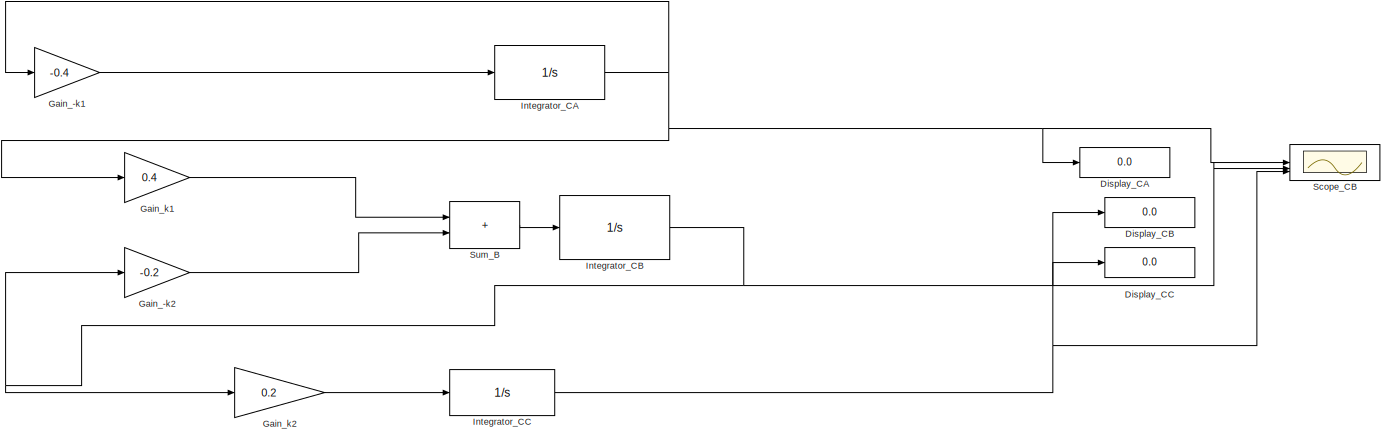
[diagram: root canvas - part 1/2, center side, full height]
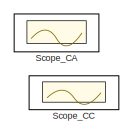
[diagram: root canvas - part 2/2, top right region]
MODEL slx_3aee440d7aa8
KIND model
CONFIG AbsTol = auto
CONFIG EnableMultiTasking = off
CONFIG FixedStep = auto
CONFIG MaxStep = auto
CONFIG MinStep = auto
CONFIG RelTol = 1e-3
CONFIG SampleTimeConstraint = Unconstrained
CONFIG SolverName = FixedStepAuto
CONFIG StartTime = 0.0
CONFIG StopTime = 50
BLOCK [Display] Display_CA
  Decimation = 1
BLOCK [Display] Display_CB
  Decimation = 1
BLOCK [Display] Display_CC
  Decimation = 1
BLOCK [Gain] Gain_-k1
  Gain = -0.4
BLOCK [Gain] Gain_-k2
  Gain = -0.2
BLOCK [Gain] Gain_k1
  Gain = 0.4
BLOCK [Gain] Gain_k2
  Gain = 0.2
BLOCK [Integrator] Integrator_CA
  InitialCondition = 5
  LimitOutput = on
  LowerSaturationLimit = 0
  UpperSaturationLimit = 1
BLOCK [Integrator] Integrator_CB
  LimitOutput = on
  LowerSaturationLimit = 0
  UpperSaturationLimit = 1
BLOCK [Integrator] Integrator_CC
  LimitOutput = on
  LowerSaturationLimit = 0
  UpperSaturationLimit = 1
BLOCK [Scope] Scope_CA
  ActiveDisplayYMaximum = 1.1249999997606503
  ActiveDisplayYMinimum = -0.1249999978458536
  Floating = off
  GraphicalSettings = {"Style":{"BackgroundColor":[0.12941176470588237,0.12941176470588237,0.12941176470588237],"AxesColor":[0,0,0],"LabelsColor":[0.8509803921568627,0.8509803921568627,0.8509803921568627],"PreserveColors":false,"Visible":[true],"LineStyle":["-"],"LineWidth":[2],"BarWidth":[0.9],"LineColor":[[1,0,0]],"LineFaceAlpha":[1],"LineEdgeAlpha":[1],"Marker":["none"],"FontSize":8.5,"LineTrueColor":[[1,0,0]],"Chan...<+1918ch>
  MultipleDisplayCache = [{"MaxYLimMag":1.1249999997606503,"MaxYLimReal":1.1249999997606503,"MinYLimMag":0,"MinYLimReal":-0.1249999978458536,"PlotAsMagnitudePhase":false,"ShowGrid":true,"ShowLegend":true,"Title":"%<SignalLabel>","YLabel":""}]
  NumInputPorts = 1
  ScopeFrameLocation = window
  ShowLegend = on
  ShowTimeAxisLabel = on
  TimeAxisLabels = All
  WasSavedAsWebScope = on
  WindowPosition = [250.000000,313.000000,863.000000,508.000000,]
BLOCK [Scope] Scope_CB
  ActiveDisplayYMaximum = 1.1619994235489424
  ActiveDisplayYMinimum = -0.74861641924614009
  DataLoggingVariableName = ScopeData1
  DisplayFullPath = on
  Floating = off
  GraphicalSettings = {"Style":{"BackgroundColor":[0.12941176470588237,0.12941176470588237,0.12941176470588237],"AxesColor":[0.07058823529411765,0.07058823529411765,0.07058823529411765],"LabelsColor":[0.8509803921568627,0.8509803921568627,0.8509803921568627],"PreserveColors":false,"Visible":[true,true,true],"LineStyle":["-","-","-"],"LineWidth":[3,1.5,1.5],"BarWidth":[0.9,0.9,0.9],"LineColor":[[0,0,1],"auto","auto"],"L...<+2384ch>
  MultipleDisplayCache = [{"MaxYLimMag":0.55983752533333331,"MaxYLimReal":1.1619994235489424,"MinYLimMag":0,"MinYLimReal":-0.74861641924614009,"PlotAsMagnitudePhase":false,"ShowGrid":true,"ShowLegend":true,"Title":"Batch Reactor Simulation: Concentration Profile of A -> B -> C Over Time","YLabel":"Concentration (mol\/L)"}]
  NumInputPorts = 3
  OpenAtSimulationStart = on
  ScopeFrameLocation = window
  ShowLegend = on
  ShowTimeAxisLabel = on
  Title = Batch Reactor Simulation: Concentration Profile of A -> B -> C Over Time
  Visible = on
  WasSavedAsWebScope = on
  WindowPosition = [908.000000,187.000000,656.000000,420.000000,]
  YLabel = Concentration (mol/L)
BLOCK [Scope] Scope_CC
  ActiveDisplayYMaximum = 1.12489825133702
  ActiveDisplayYMinimum = -0.1249886945930022
  DataLoggingVariableName = ScopeData2
  Floating = off
  GraphicalSettings = {"Style":{"BackgroundColor":[0.12941176470588237,0.12941176470588237,0.12941176470588237],"AxesColor":[0.07058823529411765,0.07058823529411765,0.07058823529411765],"LabelsColor":[0.8509803921568627,0.8509803921568627,0.8509803921568627],"PreserveColors":false,"Visible":[true],"LineStyle":["-"],"LineWidth":[3],"BarWidth":[0.9],"LineColor":[[0.28627450980392155,0.8588235294117647,0.25098039215686274...<+2060ch>
  MultipleDisplayCache = [{"MaxYLimMag":1.12489825133702,"MaxYLimReal":1.12489825133702,"MinYLimMag":0,"MinYLimReal":-0.1249886945930022,"PlotAsMagnitudePhase":false,"ShowGrid":true,"ShowLegend":false,"Title":"%<SignalLabel>","YLabel":""}]
  NumInputPorts = 1
  ScopeFrameLocation = window
  ShowTimeAxisLabel = on
  WasSavedAsWebScope = on
  WindowPosition = [1125.000000,322.000000,813.000000,418.000000,]
BLOCK [Sum] Sum_B
  IconShape = rectangular
LINE Gain_-k1:1 -> Integrator_CA:1
LINE Gain_-k2:1 -> Sum_B:2
LINE Gain_k1:1 -> Sum_B:1
LINE Gain_k2:1 -> Integrator_CC:1
NET Integrator_CA:1 -> Display_CA:1, Gain_-k1:1, Gain_k1:1, Scope_CB:1
NET Integrator_CB:1 -> Display_CB:1, Gain_-k2:1, Gain_k2:1, Scope_CB:2
NET Integrator_CC:1 -> Display_CC:1, Scope_CB:3
LINE Sum_B:1 -> Integrator_CB:1
note: NET lines group one-source signal fan-out (src -> all destinations, sorted); 1:1 wires keep LINE
